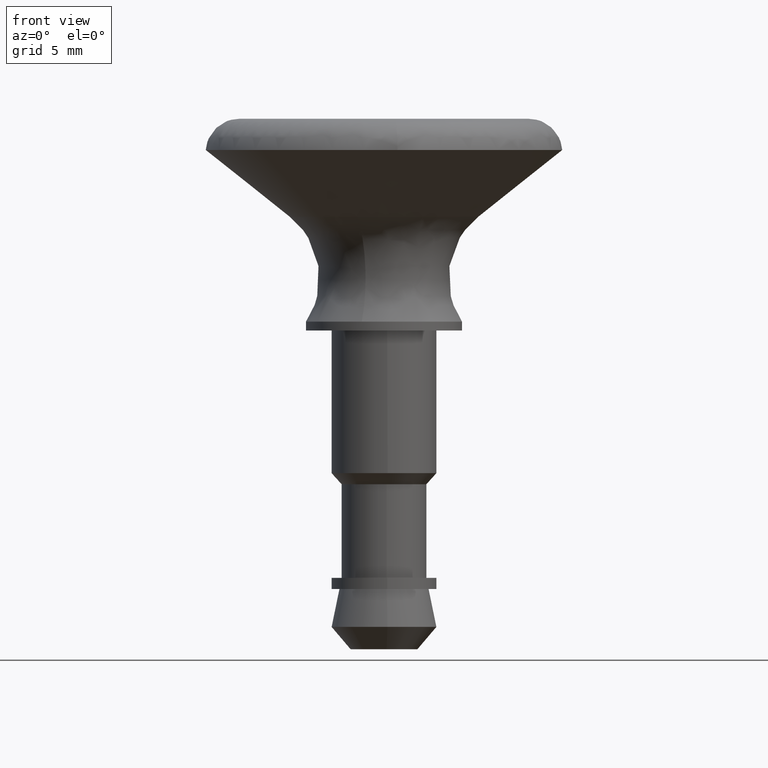
[diagram: clean part render]
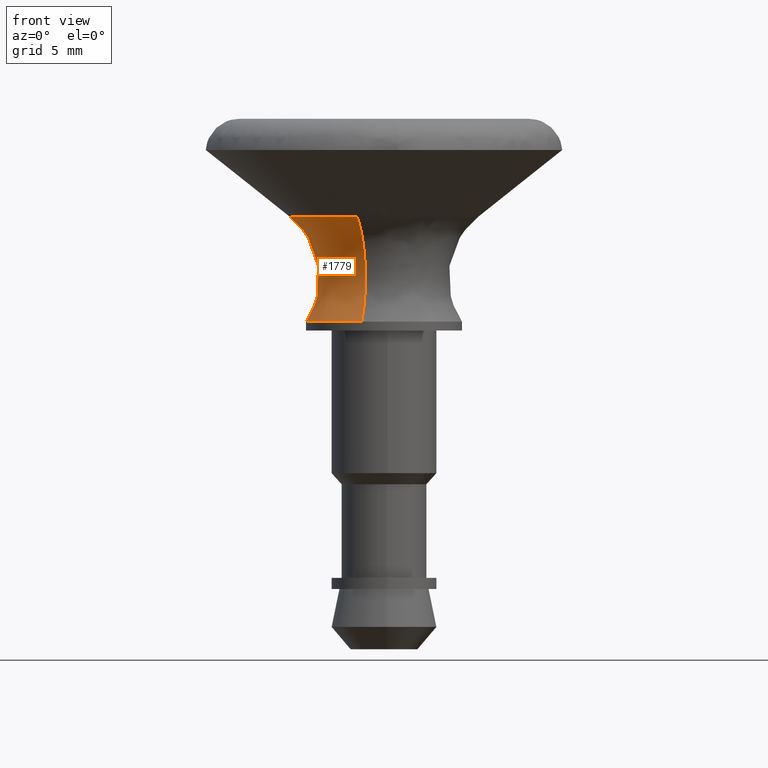
[diagram: same view with one face highlighted and labeled with its STEP entity id]
A machine part, front view. The second image highlights one B-rep face of the part: STEP entity #1779.
In plain terms, the highlighted face is a freeform B-spline surface patch.
Its self-contained STEP definition (entity closure, byte-faithful):
#94=CARTESIAN_POINT('',(-3.774731243015995,1.891213378360330,5.098999999951898));
#95=VERTEX_POINT('',#94);
#109=CARTESIAN_POINT('',(-4.222000000000000,0.0,5.098999999999901));
#110=VERTEX_POINT('',#109);
#111=CARTESIAN_POINT('',(-4.222000000000000,0.0,5.098999999999901));
#112=CARTESIAN_POINT('',(-4.222000000000000,0.998495840482262,5.098999999999900));
#113=CARTESIAN_POINT('',(-3.774731243015996,1.891213378360330,5.098999999951898));
#121=(BOUNDED_CURVE()B_SPLINE_CURVE(2,(#111,#112,#113),.UNSPECIFIED.,.F.,.U.)B_SPLINE_CURVE_WITH_KNOTS((3,3),(0.0,0.076154610386997),.UNSPECIFIED.)CURVE()GEOMETRIC_REPRESENTATION_ITEM()RATIONAL_B_SPLINE_CURVE((1.0,0.910779324145072,0.875915174755717))REPRESENTATION_ITEM(''));
#122=EDGE_CURVE('',#110,#95,#121,.T.);
#124=CARTESIAN_POINT('',(-1.203346067167455,-4.046874731217899,5.098995560304403));
#125=VERTEX_POINT('',#124);
#126=CARTESIAN_POINT('',(-1.203346067167455,-4.046874731217899,5.098995560304403));
#127=CARTESIAN_POINT('',(-4.221999204208430,-3.149275266507041,5.098997780152153));
#128=CARTESIAN_POINT('',(-4.222000000000000,0.0,5.098999999999901));
#136=(BOUNDED_CURVE()B_SPLINE_CURVE(2,(#126,#127,#128),.UNSPECIFIED.,.F.,.U.)B_SPLINE_CURVE_WITH_KNOTS((3,3),(0.798526516544188,1.0),.UNSPECIFIED.)CURVE()GEOMETRIC_REPRESENTATION_ITEM()RATIONAL_B_SPLINE_CURVE((0.908366071194791,0.763959131700273,1.0))REPRESENTATION_ITEM(''));
#137=EDGE_CURVE('',#125,#110,#136,.T.);
#333=CARTESIAN_POINT('',(-0.997567418665878,-3.354826261555651,0.399408205771953));
#334=VERTEX_POINT('',#333);
#350=CARTESIAN_POINT('',(-3.500000000000000,0.0,0.399408205773469));
#351=VERTEX_POINT('',#350);
#352=CARTESIAN_POINT('',(-0.997567418665878,-3.354826261555651,0.399408205771953));
#353=CARTESIAN_POINT('',(-3.500000000000000,-2.610720601237734,0.399408205773469));
#354=CARTESIAN_POINT('',(-3.500000000000000,0.0,0.399408205773469));
#362=(BOUNDED_CURVE()B_SPLINE_CURVE(2,(#352,#353,#354),.UNSPECIFIED.,.F.,.U.)B_SPLINE_CURVE_WITH_KNOTS((3,3),(0.798526662066469,1.0),.UNSPECIFIED.)CURVE()GEOMETRIC_REPRESENTATION_ITEM()RATIONAL_B_SPLINE_CURVE((0.908365862587614,0.763959302190231,1.0))REPRESENTATION_ITEM(''));
#363=EDGE_CURVE('',#334,#351,#362,.T.);
#365=CARTESIAN_POINT('',(-3.129218226132669,1.567798868858977,0.399408205782691));
#366=VERTEX_POINT('',#365);
#367=CARTESIAN_POINT('',(-3.500000000000000,0.0,0.399408205773469));
#368=CARTESIAN_POINT('',(-3.500000000000000,0.827744064818239,0.399408205773468));
#369=CARTESIAN_POINT('',(-3.129218226132669,1.567798868858976,0.399408205782691));
#377=(BOUNDED_CURVE()B_SPLINE_CURVE(2,(#367,#368,#369),.UNSPECIFIED.,.F.,.U.)B_SPLINE_CURVE_WITH_KNOTS((3,3),(0.0,0.076154610386495),.UNSPECIFIED.)CURVE()GEOMETRIC_REPRESENTATION_ITEM()RATIONAL_B_SPLINE_CURVE((1.0,0.910779324145661,0.875915174756177))REPRESENTATION_ITEM(''));
#378=EDGE_CURVE('',#351,#366,#377,.T.);
#1707=CARTESIAN_POINT('',(-0.997567418665878,-3.354826261555651,0.399408205771953));
#1708=CARTESIAN_POINT('',(-0.480721905951456,-1.616677870661659,3.083247524683720));
#1709=CARTESIAN_POINT('',(-1.203346067167455,-4.046874731217899,5.098995560304403));
#1717=(BOUNDED_CURVE()B_SPLINE_CURVE(2,(#1707,#1708,#1709),.UNSPECIFIED.,.F.,.U.)B_SPLINE_CURVE_WITH_KNOTS((3,3),(-1.716611771298978,-0.279916829447031),.UNSPECIFIED.)CURVE()GEOMETRIC_REPRESENTATION_ITEM()RATIONAL_B_SPLINE_CURVE((0.888513679611117,0.652565739970049,0.889656654837670))REPRESENTATION_ITEM(''));
#1718=EDGE_CURVE('',#334,#125,#1717,.T.);
#1724=CARTESIAN_POINT('',(-3.129218226132668,1.567798868858976,0.399408205782691));
#1725=CARTESIAN_POINT('',(-1.507954403532255,0.755514328907728,3.083253010912744));
#1726=CARTESIAN_POINT('',(-3.774731243015994,1.891213378360330,5.098999999951898));
#1734=(BOUNDED_CURVE()B_SPLINE_CURVE(2,(#1724,#1725,#1726),.UNSPECIFIED.,.F.,.U.)B_SPLINE_CURVE_WITH_KNOTS((3,3),(-1.716611771291150,-0.279914672494356),.UNSPECIFIED.)CURVE()GEOMETRIC_REPRESENTATION_ITEM()RATIONAL_B_SPLINE_CURVE((0.833551069418780,0.612198312338114,0.834624009155128))REPRESENTATION_ITEM(''));
#1735=EDGE_CURVE('',#366,#95,#1734,.T.);
#1742=CARTESIAN_POINT('',(-1.009277397592936,-3.494964824171783,0.209681306278911));
#1743=CARTESIAN_POINT('',(-1.023018233181421,-3.490878946448370,0.209681306278911));
#1744=CARTESIAN_POINT('',(-4.523583813299370,-2.449975514408688,0.209681306278911));
#1745=CARTESIAN_POINT('',(-3.486779663854029,1.036804149445341,0.209681306278911));
#1746=CARTESIAN_POINT('',(-3.395599267040447,1.343444466733637,0.209681306278911));
#1747=CARTESIAN_POINT('',(-3.245411105454058,1.643209790189344,0.209681306278911));
#1748=CARTESIAN_POINT('',(-3.238505657530809,1.656992593097738,0.209681306278911));
#1749=CARTESIAN_POINT('',(-0.378329620733604,-1.310094449315598,3.132653213373156));
#1750=CARTESIAN_POINT('',(-0.383480400022977,-1.308562850001921,3.132653213373155));
#1751=CARTESIAN_POINT('',(-1.695674303738315,-0.918378147953625,3.132653213373156));
#1752=CARTESIAN_POINT('',(-1.307026225845970,0.388648077892345,3.132653213373155));
#1753=CARTESIAN_POINT('',(-1.272847074477780,0.503592804899997,3.132653213373156));
#1754=CARTESIAN_POINT('',(-1.216548746240995,0.615960426925973,3.132653213373152));
#1755=CARTESIAN_POINT('',(-1.213960225483442,0.621126937747888,3.132653213373153));
#1756=CARTESIAN_POINT('',(-1.223566548994945,-4.237013589097857,5.238476903885894));
#1757=CARTESIAN_POINT('',(-1.240224830277581,-4.232060200349062,5.238476903885894));
#1758=CARTESIAN_POINT('',(-5.484028324352162,-2.970152796878739,5.238476903885892));
#1759=CARTESIAN_POINT('',(-4.227090560615453,1.256937763736714,5.238476903885894));
#1760=CARTESIAN_POINT('',(-4.116550798473485,1.628683763104153,5.238476903885894));
#1761=CARTESIAN_POINT('',(-3.934474779521293,1.992095074210304,5.238476903885891));
#1762=CARTESIAN_POINT('',(-3.926103171175694,2.008804233288197,5.238476903885892));
#1770=(BOUNDED_SURFACE()B_SPLINE_SURFACE(2,2,((#1742,#1749,#1756),(#1743,#1750,#1757),(#1744,#1751,#1758),(#1745,#1752,#1759),(#1746,#1753,#1760),(#1747,#1754,#1761),(#1748,#1755,#1762)),.UNSPECIFIED.,.F.,.F.,.U.)B_SPLINE_SURFACE_WITH_KNOTS((3,1,2,1,3),(3,3),(0.0,0.040922468884318,7.347666080341104,8.224474477525472,8.265393100465966),(0.0,6.032074993950960),.UNSPECIFIED.)GEOMETRIC_REPRESENTATION_ITEM()RATIONAL_B_SPLINE_SURFACE(((0.916261364212569,0.629816314730242,0.917523463001155),(0.914763252647770,0.628786548397567,0.916023287871455),(0.645775974281058,0.443891077533931,0.646665494571525),(0.913265141082971,0.627756782064893,0.914523112741756),(0.881166471678447,0.605692918562937,0.882380229215200),(0.855633017455817,0.588141828154743,0.856811604087300),(0.854494559327427,0.587359279058053,0.855671577796505)))REPRESENTATION_ITEM('')SURFACE());
#1771=ORIENTED_EDGE('',*,*,#122,.T.);
#1772=ORIENTED_EDGE('',*,*,#1735,.F.);
#1773=ORIENTED_EDGE('',*,*,#378,.F.);
#1774=ORIENTED_EDGE('',*,*,#363,.F.);
#1775=ORIENTED_EDGE('',*,*,#1718,.T.);
#1776=ORIENTED_EDGE('',*,*,#137,.T.);
#1777=EDGE_LOOP('',(#1771,#1772,#1773,#1774,#1775,#1776));
#1778=FACE_OUTER_BOUND('',#1777,.T.);
#1779=ADVANCED_FACE('',(#1778),#1770,.F.);